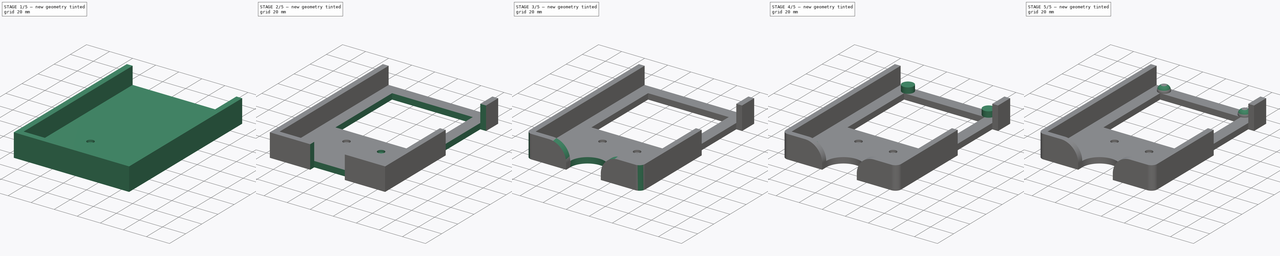
[diagram: build sequence overview — one tinted view per stage of 5, left to right]
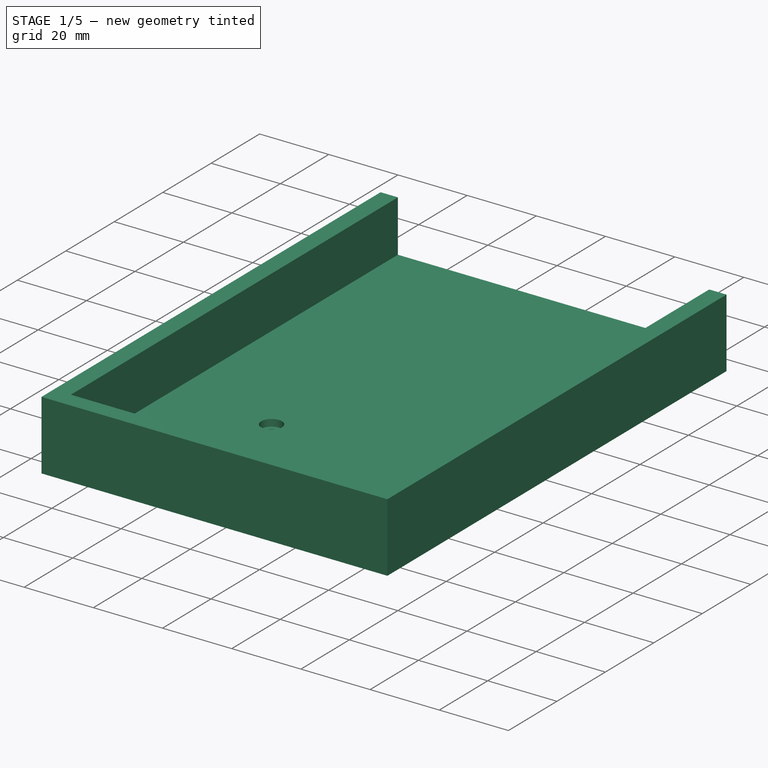
[diagram: stage 1 of 5 — iso view after this stage's code; geometry added in this stage tinted green]
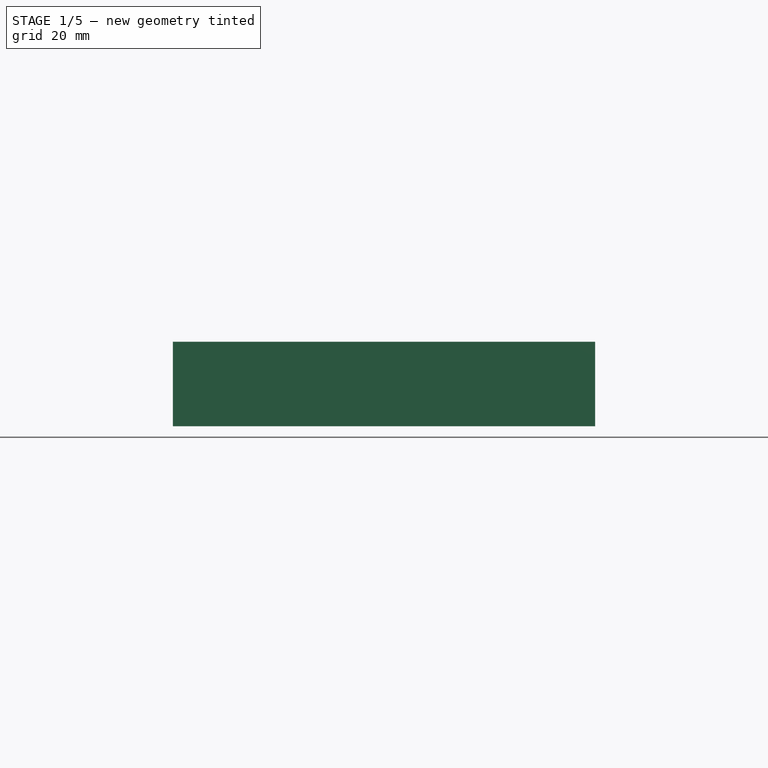
[diagram: stage 1 of 5 — front view after this stage's code; geometry added in this stage tinted green]
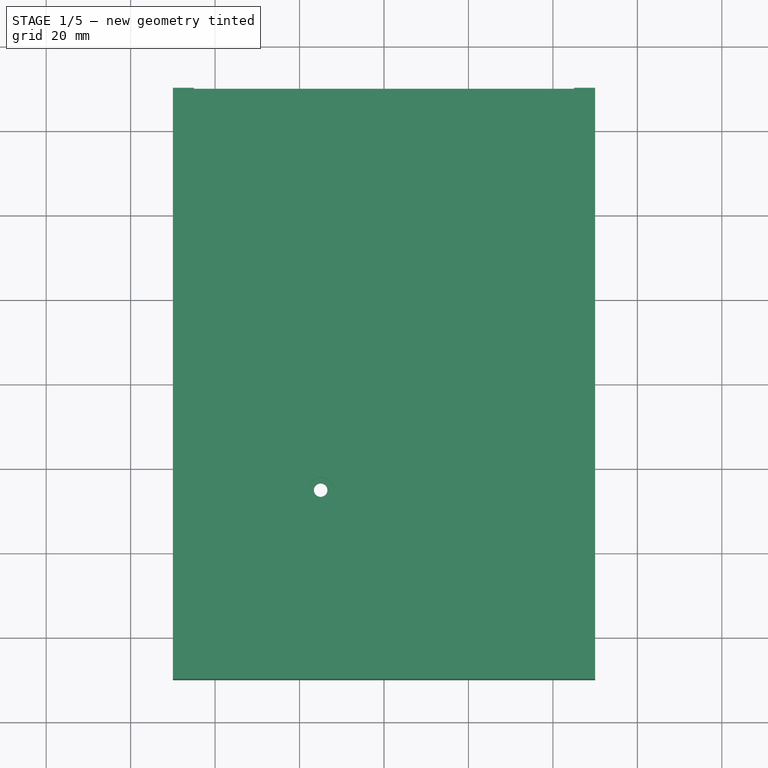
[diagram: stage 1 of 5 — top view after this stage's code; geometry added in this stage tinted green]
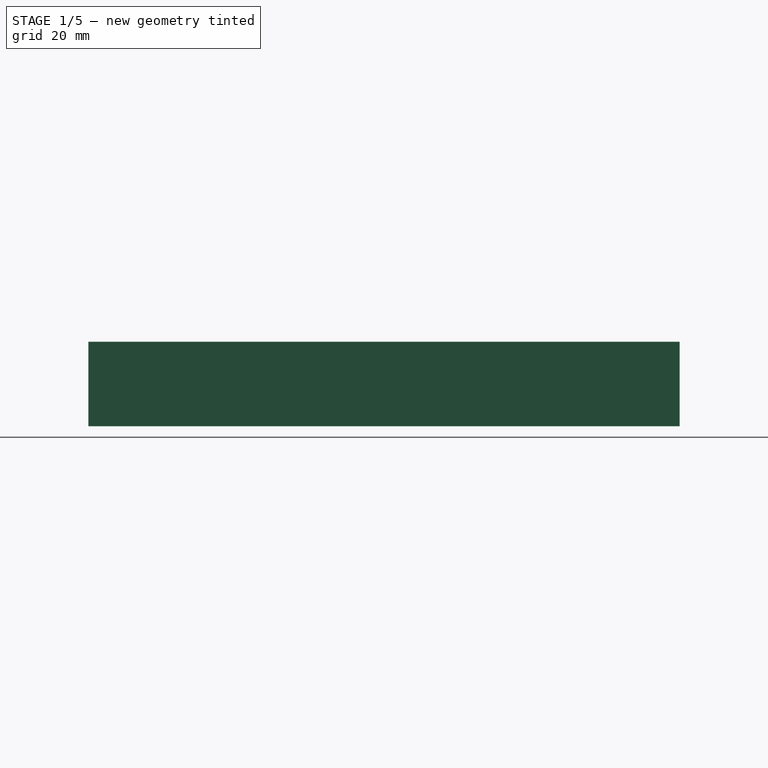
[diagram: stage 1 of 5 — right view after this stage's code; geometry added in this stage tinted green]
FCSTD DOCUMENT  (FreeCAD 0.14R3702 (Git))
Label: Suppor Nexus3
License: CC-BY 3.0
LicenseURL: http://creativecommons.org/licenses/by/3.0/
objects: Sketcher::SketchObject×11, PartDesign::Fillet×8, PartDesign::Pocket×7, PartDesign::Pad×3, PartDesign::Mirrored×3, App::MeasureDistance×1
note: 42 computed .brp shape members not serialized (recipe doc carries the construction recipe); baked Part::Feature solids carry a one-line shape summary decoded from their .brp

FEATURE [Sketcher::SketchObject] Sketch
  sketch-geometry (4):
    g0: LineSegment StartX=-50 StartY=70 StartZ=0 EndX=50 EndY=70 EndZ=0
    g1: LineSegment StartX=50 StartY=70 StartZ=0 EndX=50 EndY=-70 EndZ=0
    g2: LineSegment StartX=50 StartY=-70 StartZ=0 EndX=-50 EndY=-70 EndZ=0
    g3: LineSegment StartX=-50 StartY=-70 StartZ=0 EndX=-50 EndY=70 EndZ=0
  constraints (11):
    c: Coincident(g0,g1)
    c: Coincident(g1,g2)
    c: Coincident(g2,g3)
    c: Coincident(g3,g0)
    c: Horizontal(g0)
    c: Horizontal(g2)
    c: Vertical(g1)
    c: Vertical(g3)
    c: DistanceX(g2) = -100
    c: DistanceY(g1) = -140
    c: Symmetric(g2,g0,g-1)
FEATURE [PartDesign::Pad] Pad
  Length = 20
  Length2 = 26.5
  Sketch = -> Sketch
  Type = 0
FEATURE [Sketcher::SketchObject] Sketch001
  ExternalGeometry = -> [Pad]
  Placement = pos=(0,0,20) rot=(0,0,1;0rad)
  Support = -> Pad [Face6]
  sketch-geometry (4):
    g0: LineSegment StartX=-45 StartY=70 StartZ=0 EndX=45 EndY=70 EndZ=0
    g1: LineSegment StartX=45 StartY=70 StartZ=0 EndX=45 EndY=-65 EndZ=0
    g2: LineSegment StartX=45 StartY=-65 StartZ=0 EndX=-45 EndY=-65 EndZ=0
    g3: LineSegment StartX=-45 StartY=-65 StartZ=0 EndX=-45 EndY=70 EndZ=0
  constraints (12):
    c: Coincident(g0,g1)
    c: Coincident(g1,g2)
    c: Coincident(g2,g3)
    c: Coincident(g3,g0)
    c: Horizontal(g0)
    c: Horizontal(g2)
    c: Vertical(g1)
    c: Vertical(g3)
    c: DistanceY(g0,g-3) = 0
    c: DistanceX(g0,g-3) = 5
    c: DistanceX(g-3,g0) = 5
    c: DistanceY(g1) = -135
FEATURE [PartDesign::Pocket] Pocket
  Length = 15
  Sketch = -> Sketch001
  Type = 0
FEATURE [Sketcher::SketchObject] Sketch002
  Placement = pos=(0,0,0) rot=(1,0,0;3.14159rad)
  Support = -> Pocket [Face2]
FEATURE [Sketcher::SketchObject] Sketch003
  ExternalGeometry = -> [Pocket]
  Placement = pos=(0,0,5) rot=(0,0,1;0rad)
  Support = -> Pocket [Face6]
  sketch-geometry (1):
    g0: Circle CenterX=-15 CenterY=-25 CenterZ=0 NormalX=0 NormalY=0 NormalZ=1 Radius=3
  constraints (3):
    c: Radius(g0) = 3
    c: Distance(g0,g-4) = 40
    c: DistanceX(g-2,g0) = -15
FEATURE [PartDesign::Pocket] Pocket001
  Length = 2
  Sketch = -> Sketch003
  Type = 0
FEATURE [Sketcher::SketchObject] Sketch004
  ExternalGeometry = -> [Pocket001]
  Placement = pos=(0,0,3) rot=(0,0,1;0rad)
  Support = -> Pocket001 [Face12]
  sketch-geometry (1):
    g0: Circle CenterX=-15 CenterY=-25 CenterZ=0 NormalX=0 NormalY=0 NormalZ=1 Radius=1.6
  constraints (2):
    c: Coincident(g0,g-3)
    c: Radius(g0) = 1.6
FEATURE [PartDesign::Pocket] Pocket002
  Length = 5
  Sketch = -> Sketch004
  Type = 1
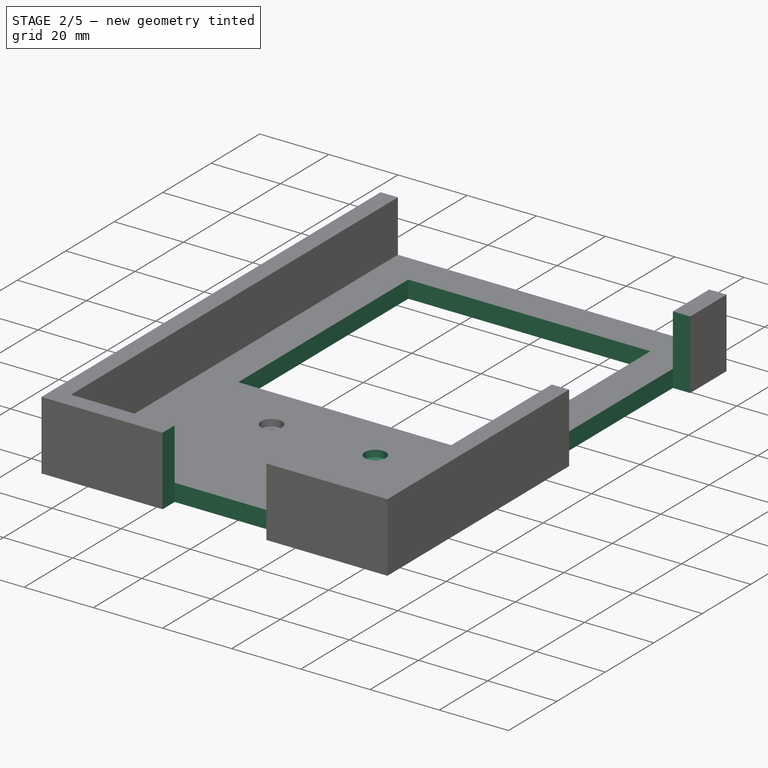
[diagram: stage 2 of 5 — iso view after this stage's code; geometry added in this stage tinted green]
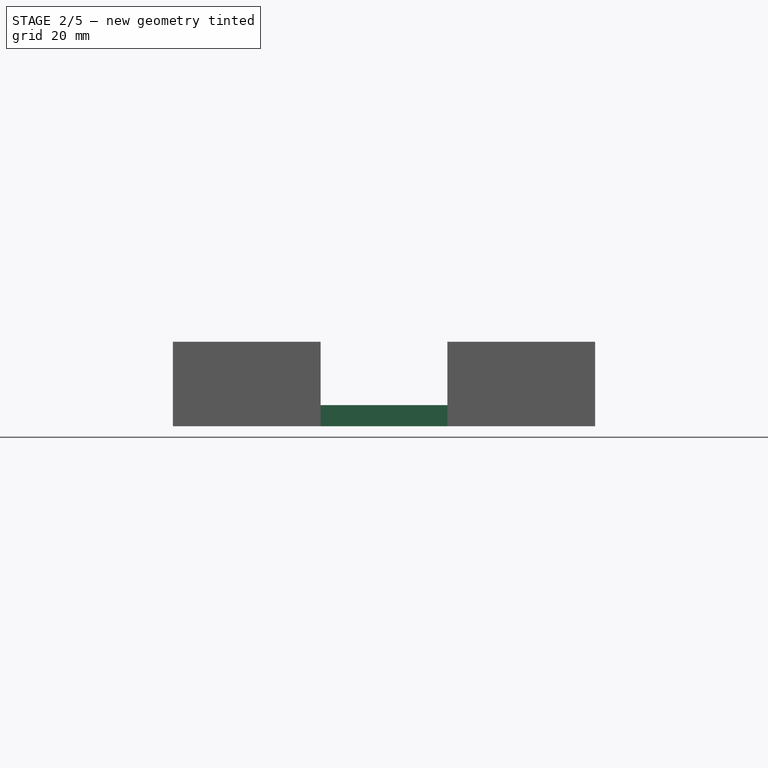
[diagram: stage 2 of 5 — front view after this stage's code; geometry added in this stage tinted green]
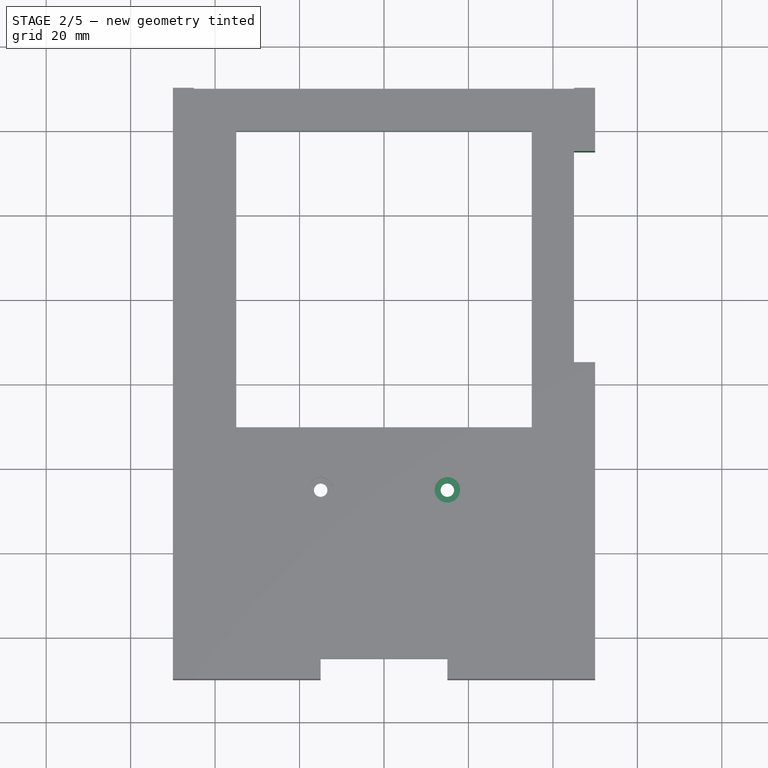
[diagram: stage 2 of 5 — top view after this stage's code; geometry added in this stage tinted green]
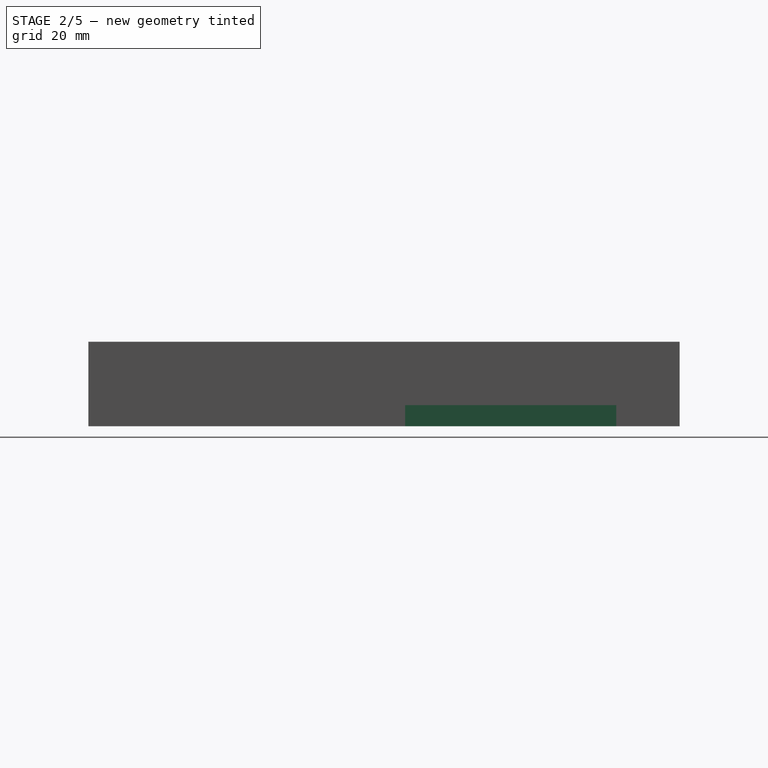
[diagram: stage 2 of 5 — right view after this stage's code; geometry added in this stage tinted green]
FEATURE [PartDesign::Mirrored] Mirrored
  MirrorPlane = -> Sketch004 [V_Axis]
  Originals = -> [Pocket002,Pocket001]
FEATURE [Sketcher::SketchObject] Sketch005
  ExternalGeometry = -> [Mirrored]
  Placement = pos=(0,0,20) rot=(0,0,1;0rad)
  Support = -> Mirrored [Face4]
  sketch-geometry (4):
    g0: LineSegment StartX=45 StartY=55 StartZ=0 EndX=50 EndY=55 EndZ=0
    g1: LineSegment StartX=50 StartY=55 StartZ=0 EndX=50 EndY=5 EndZ=0
    g2: LineSegment StartX=50 StartY=5 StartZ=0 EndX=45 EndY=5 EndZ=0
    g3: LineSegment StartX=45 StartY=5 StartZ=0 EndX=45 EndY=55 EndZ=0
  constraints (12):
    c: Coincident(g0,g1)
    c: Coincident(g1,g2)
    c: Coincident(g2,g3)
    c: Coincident(g3,g0)
    c: Horizontal(g0)
    c: Horizontal(g2)
    c: Vertical(g1)
    c: Vertical(g3)
    c: DistanceX(g2,g-3) = 0
    c: DistanceX(g-4,g1) = 0
    c: DistanceY(g-3,g2) = 70
    c: DistanceY(g-3,g0) = 120
FEATURE [PartDesign::Pocket] Pocket003
  Length = 15
  Sketch = -> Sketch005
  Type = 1
FEATURE [Sketcher::SketchObject] Sketch006
  Placement = pos=(0,0,20) rot=(0,0,1;0rad)
  Support = -> Pocket003 [Face8]
  sketch-geometry (4):
    g0: LineSegment StartX=-15 StartY=-65 StartZ=0 EndX=15 EndY=-65 EndZ=0
    g1: LineSegment StartX=15 StartY=-65 StartZ=0 EndX=15 EndY=-70 EndZ=0
    g2: LineSegment StartX=15 StartY=-70 StartZ=0 EndX=-15 EndY=-70 EndZ=0
    g3: LineSegment StartX=-15 StartY=-70 StartZ=0 EndX=-15 EndY=-65 EndZ=0
  constraints (8):
    c: Coincident(g0,g1)
    c: Coincident(g1,g2)
    c: Coincident(g2,g3)
    c: Coincident(g3,g0)
    c: Horizontal(g0)
    c: Horizontal(g2)
    c: Vertical(g1)
    c: Vertical(g3)
FEATURE [PartDesign::Pocket] Pocket004
  Length = 5
  Sketch = -> Sketch006
  Type = 1
FEATURE [Sketcher::SketchObject] Sketch007
  Placement = pos=(0,0,5) rot=(0,0,1;0rad)
  Support = -> Pocket004 [Face6]
  sketch-geometry (4):
    g0: LineSegment StartX=-35 StartY=60 StartZ=0 EndX=35 EndY=60 EndZ=0
    g1: LineSegment StartX=35 StartY=60 StartZ=0 EndX=35 EndY=-10.1567 EndZ=0
    g2: LineSegment StartX=35 StartY=-10.1567 StartZ=0 EndX=-35 EndY=-10.1567 EndZ=0
    g3: LineSegment StartX=-35 StartY=-10.1567 StartZ=0 EndX=-35 EndY=60 EndZ=0
  constraints (9):
    c: Coincident(g0,g1)
    c: Coincident(g1,g2)
    c: Coincident(g2,g3)
    c: Coincident(g3,g0)
    c: Horizontal(g0)
    c: Horizontal(g2)
    c: Vertical(g1)
    c: Vertical(g3)
    c: Symmetric(g0,g0,g-2)
FEATURE [PartDesign::Pocket] Pocket005
  Length = 5
  Sketch = -> Sketch007
  Type = 1
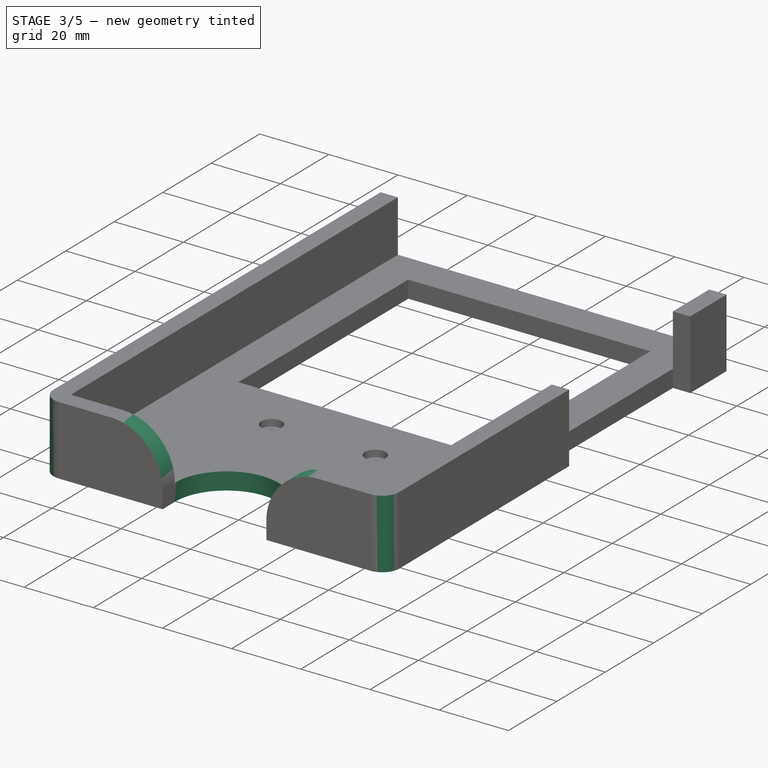
[diagram: stage 3 of 5 — iso view after this stage's code; geometry added in this stage tinted green]
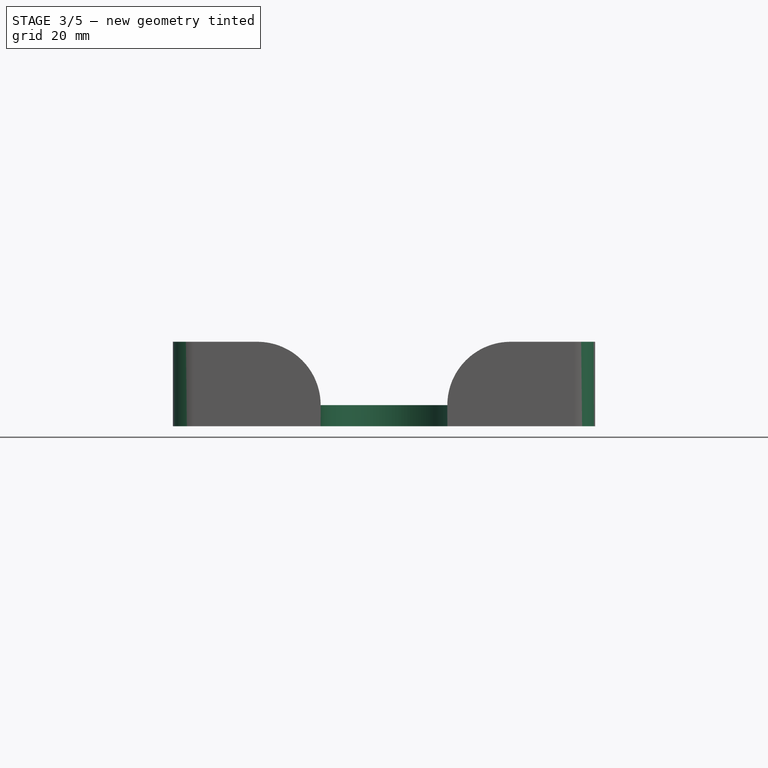
[diagram: stage 3 of 5 — front view after this stage's code; geometry added in this stage tinted green]
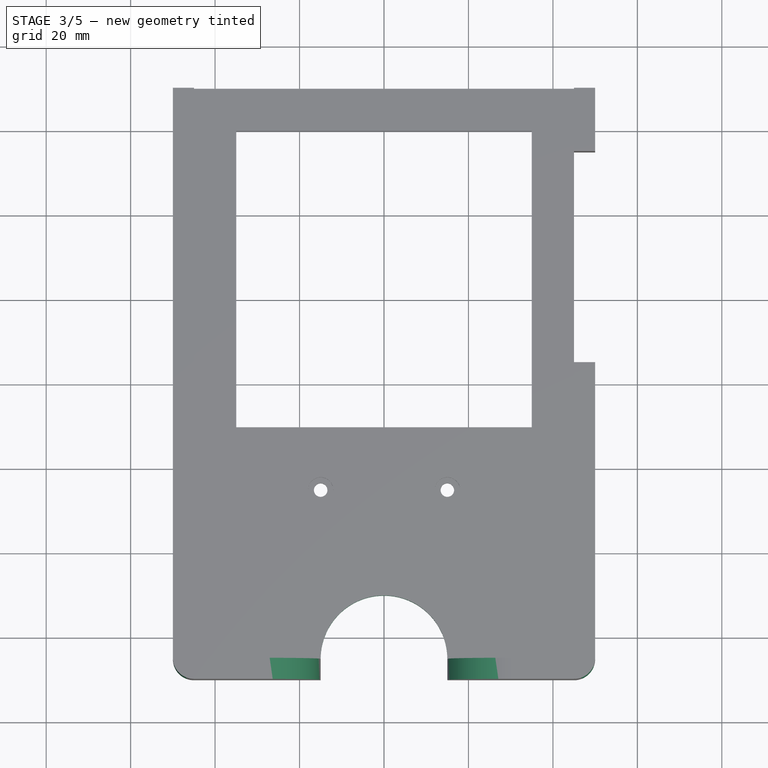
[diagram: stage 3 of 5 — top view after this stage's code; geometry added in this stage tinted green]
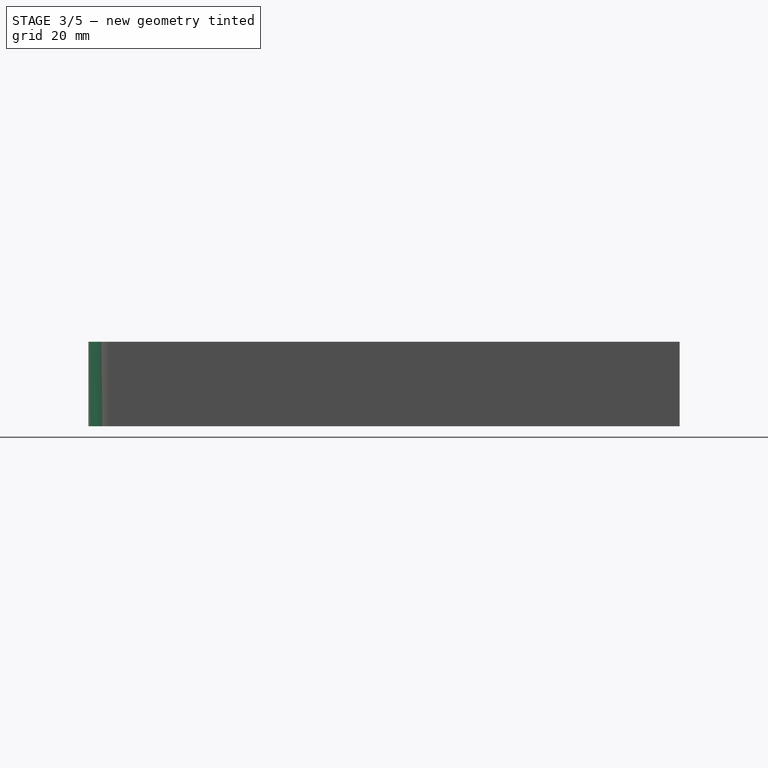
[diagram: stage 3 of 5 — right view after this stage's code; geometry added in this stage tinted green]
FEATURE [Sketcher::SketchObject] Sketch008
  Placement = pos=(0,0,5) rot=(0,0,1;0rad)
  Support = -> Pocket005 [Face6]
  sketch-geometry (1):
    g0: Circle CenterX=0 CenterY=-65 CenterZ=0 NormalX=0 NormalY=0 NormalZ=1 Radius=15
  constraints (2):
    c: PointOnObject(g0,g-2)
    c: Radius(g0) = 15
FEATURE [PartDesign::Pocket] Pocket006
  Length = 5
  Sketch = -> Sketch008
  Type = 1
FEATURE [PartDesign::Fillet] Fillet
  Base = -> Pocket006 [Edge56]
  Radius = 5
FEATURE [PartDesign::Fillet] Fillet001
  Base = -> Fillet [Edge51]
  Radius = 5
FEATURE [PartDesign::Fillet] Fillet002
  Base = -> Fillet001 [Edge26]
  Radius = 15
FEATURE [PartDesign::Fillet] Fillet003
  Base = -> Fillet002 [Edge45]
  Radius = 15
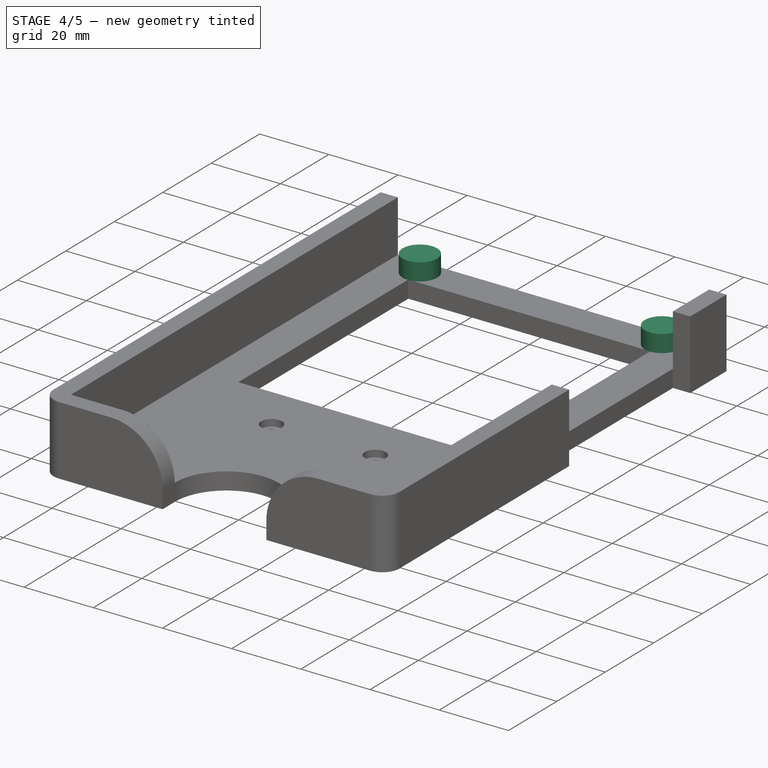
[diagram: stage 4 of 5 — iso view after this stage's code; geometry added in this stage tinted green]
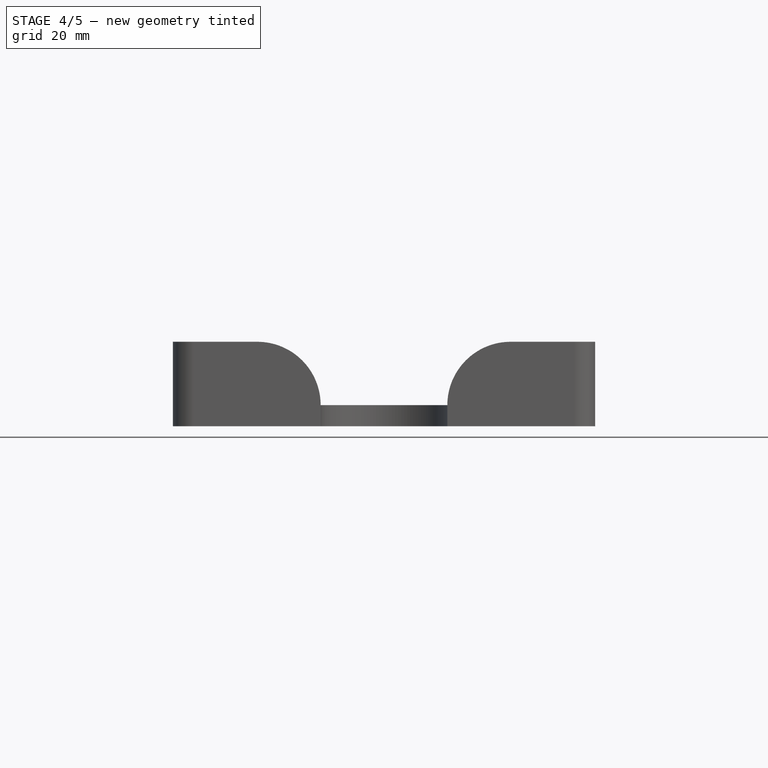
[diagram: stage 4 of 5 — front view after this stage's code; geometry added in this stage tinted green]
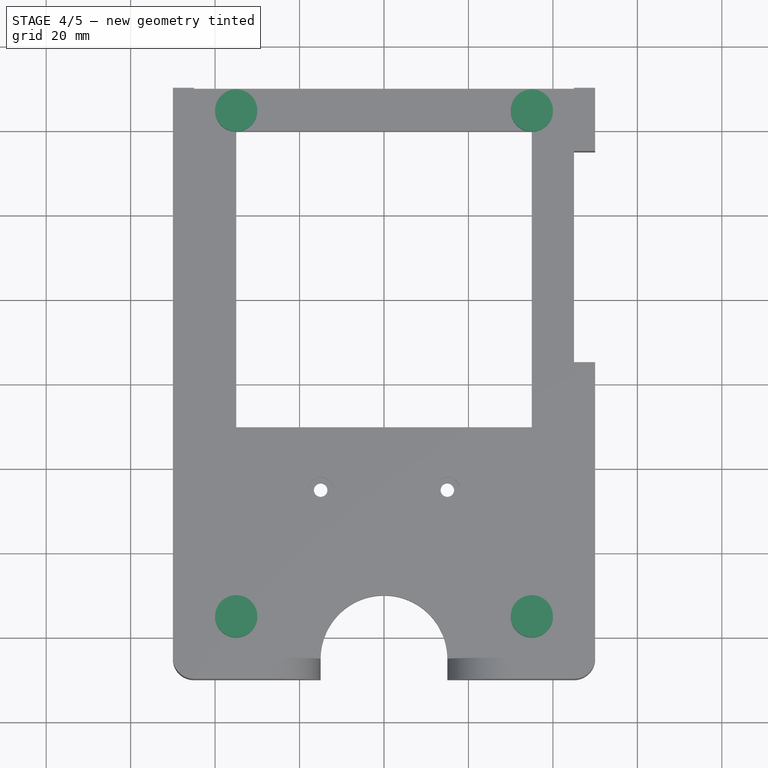
[diagram: stage 4 of 5 — top view after this stage's code; geometry added in this stage tinted green]
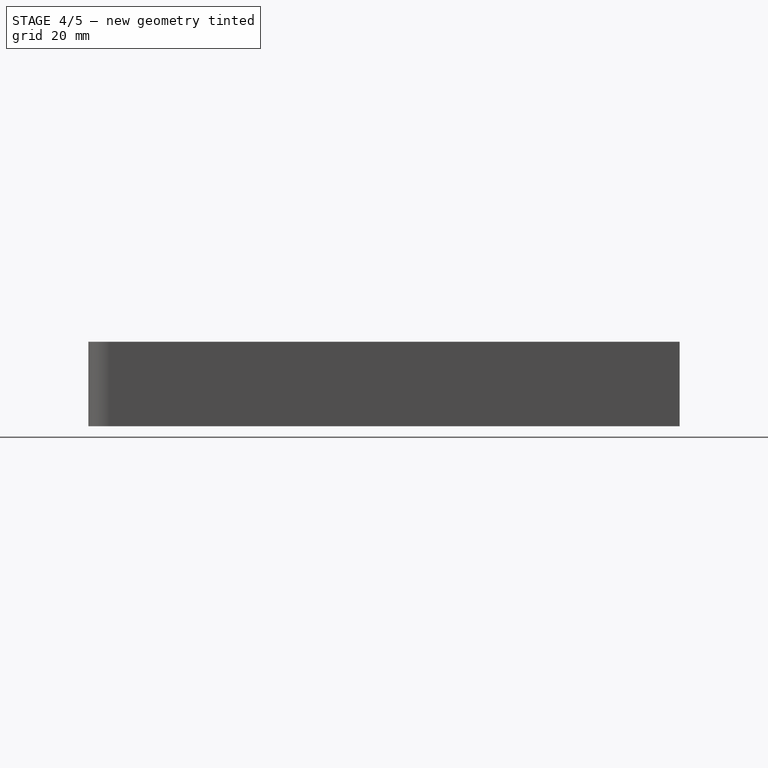
[diagram: stage 4 of 5 — right view after this stage's code; geometry added in this stage tinted green]
FEATURE [Sketcher::SketchObject] Sketch009
  ExternalGeometry = -> [Fillet003]
  Placement = pos=(0,0,5) rot=(0,0,1;0rad)
  Support = -> Fillet003 [Face25]
  sketch-geometry (1):
    g0: Circle CenterX=35 CenterY=64.8 CenterZ=0 NormalX=0 NormalY=0 NormalZ=1 Radius=5
  constraints (3):
    c: Radius(g0) = 5
    c: DistanceX(g-3,g0) = -10
    c: DistanceY(g0,g-3) = 5.2
FEATURE [PartDesign::Pad] Pad001
  Length = 5
  Length2 = 100
  Sketch = -> Sketch009
  Type = 0
FEATURE [PartDesign::Mirrored] Mirrored001
  MirrorPlane = -> Sketch009 [V_Axis]
  Originals = -> [Pad001]
FEATURE [Sketcher::SketchObject] Sketch010
  ExternalGeometry = -> [Mirrored001]
  Placement = pos=(0,0,5) rot=(0,0,1;0rad)
  Support = -> Mirrored001 [Face3]
  sketch-geometry (1):
    g0: Circle CenterX=-35 CenterY=-55 CenterZ=0 NormalX=0 NormalY=0 NormalZ=1 Radius=5
  constraints (3):
    c: Radius(g0) = 5
    c: DistanceX(g-3,g0) = -20
    c: DistanceY(g0,g-3) = -10
FEATURE [PartDesign::Pad] Pad002
  Length = 5
  Length2 = 100
  Sketch = -> Sketch010
  Type = 0
FEATURE [PartDesign::Mirrored] Mirrored002
  MirrorPlane = -> Sketch010 [V_Axis]
  Originals = -> [Pad002]
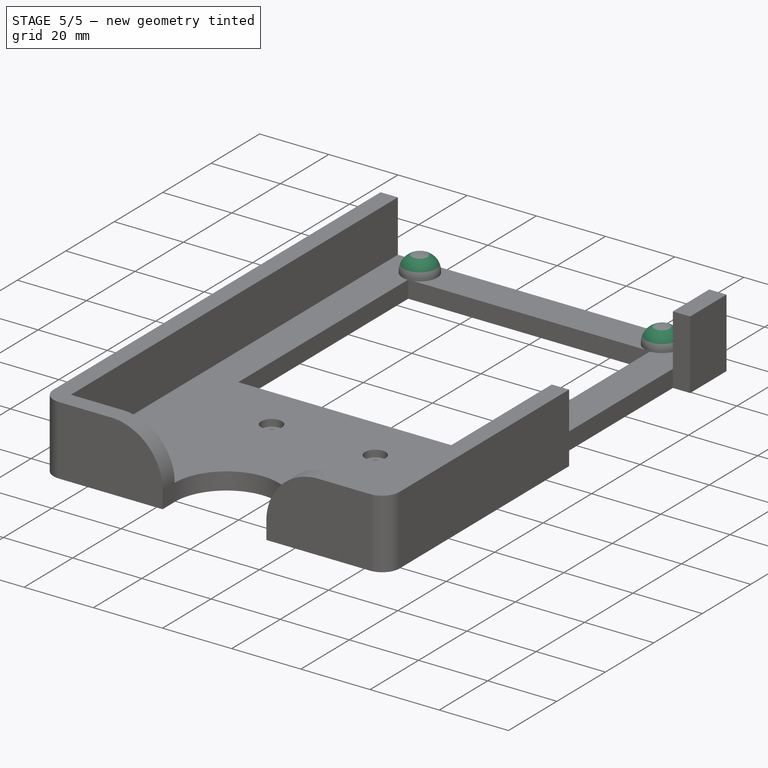
[diagram: stage 5 of 5 — iso view after this stage's code; geometry added in this stage tinted green]
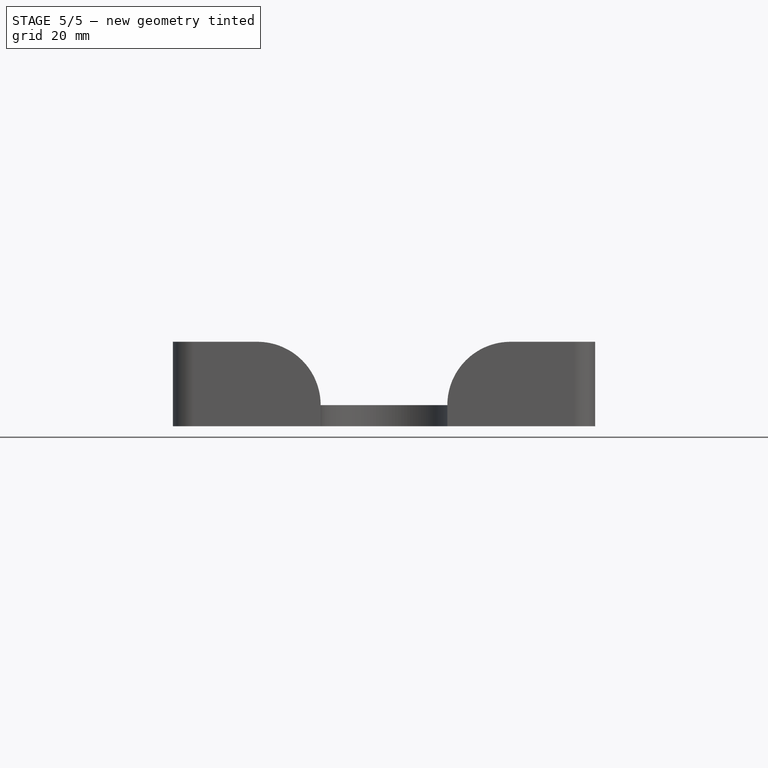
[diagram: stage 5 of 5 — front view after this stage's code; geometry added in this stage tinted green]
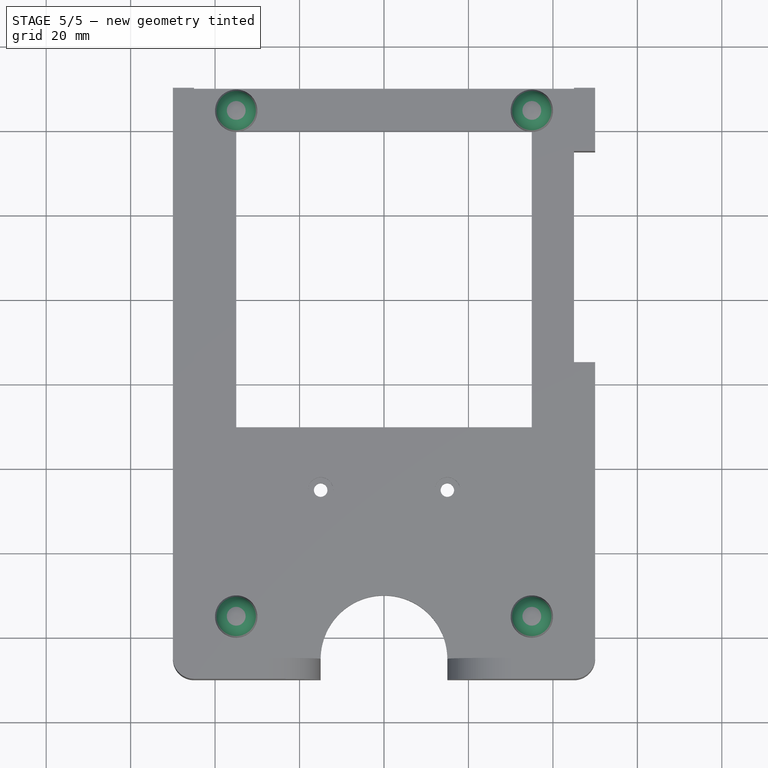
[diagram: stage 5 of 5 — top view after this stage's code; geometry added in this stage tinted green]
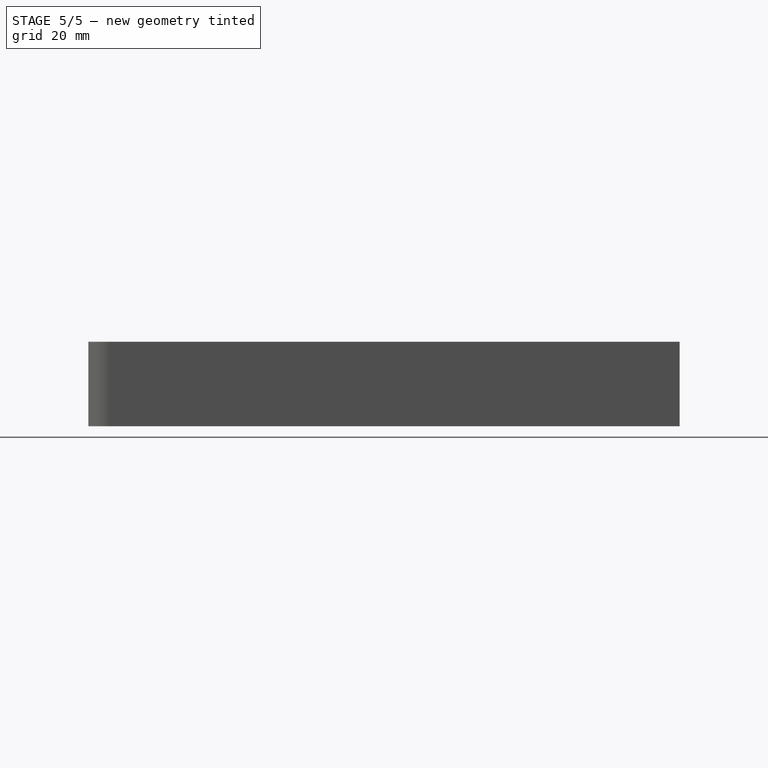
[diagram: stage 5 of 5 — right view after this stage's code; geometry added in this stage tinted green]
FEATURE [PartDesign::Fillet] Fillet004
  Base = -> Mirrored002 [Edge68]
  Radius = 4.5
FEATURE [PartDesign::Fillet] Fillet005
  Base = -> Fillet004 [Edge72]
  Radius = 4.5
FEATURE [PartDesign::Fillet] Fillet006
  Base = -> Fillet005 [Edge64]
  Radius = 4.5
FEATURE [PartDesign::Fillet] Fillet007
  Base = -> Fillet006 [Edge66]
  Radius = 4.5
FEATURE [App::MeasureDistance] Distance  label="Distance: 100.000"
  Distance = 100
  P1 = (-50,70,20)
  P2 = (50,70,20)
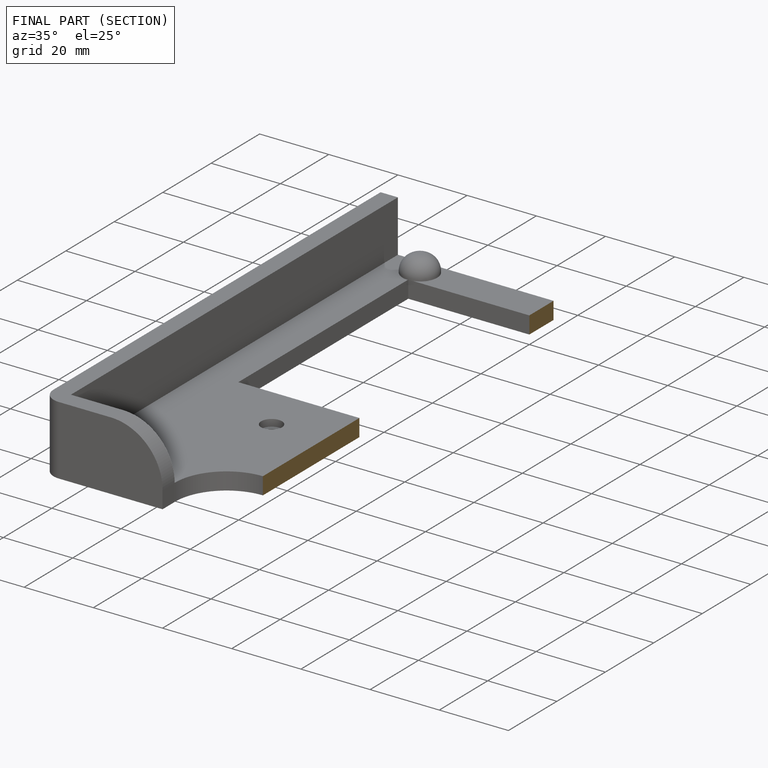
[diagram: finished part — half-section view (interior)]
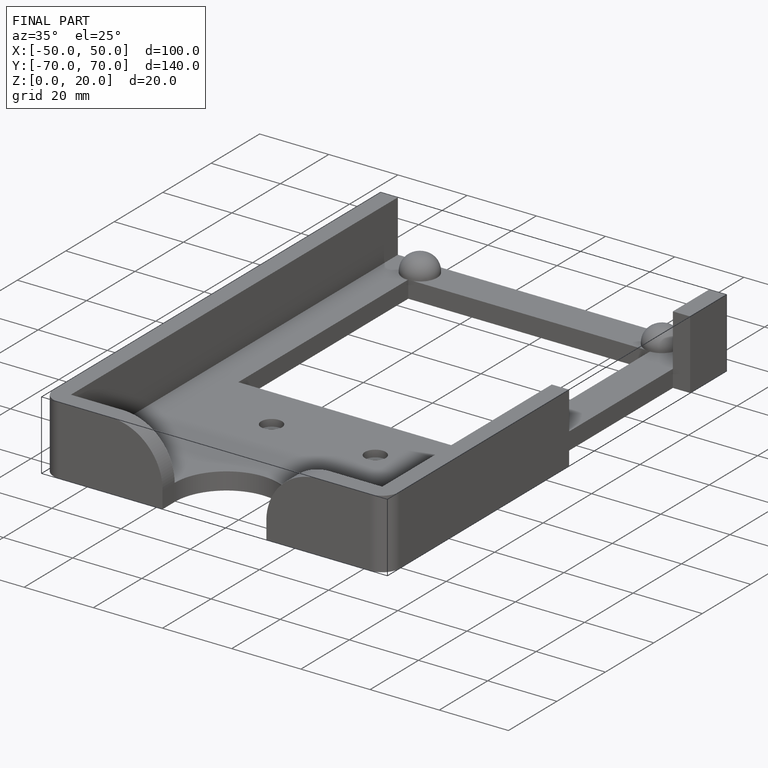
[diagram: finished part — iso view with bounding-box wireframe]
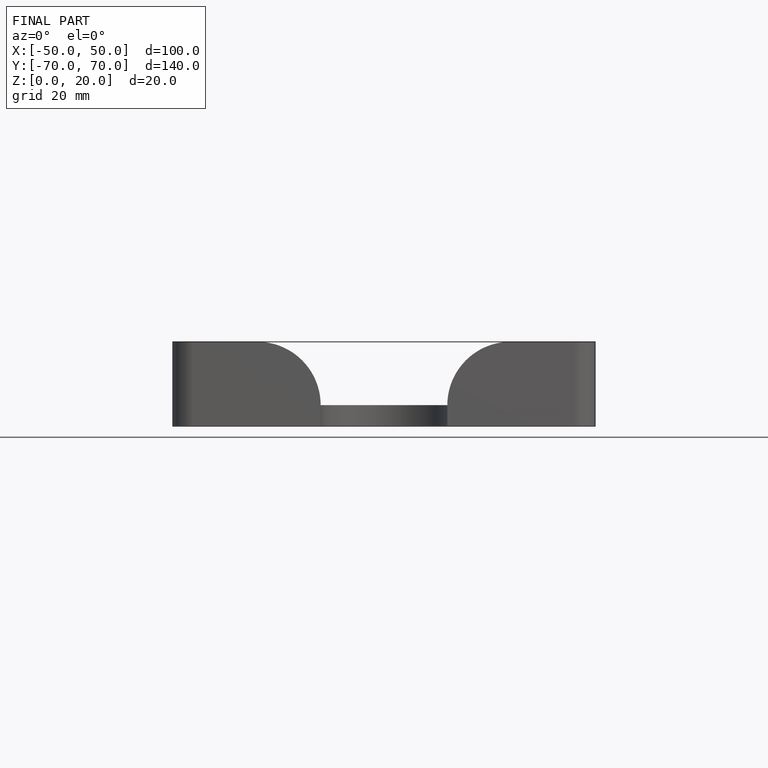
[diagram: finished part — front view with bounding-box wireframe]
